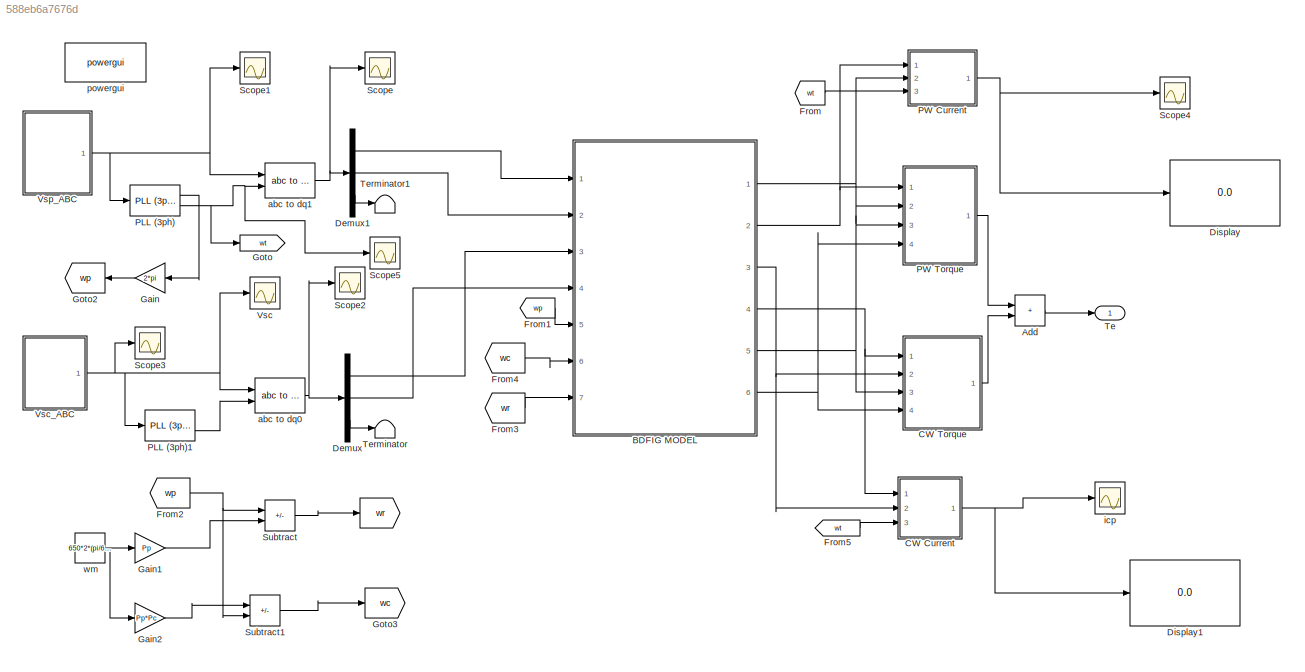
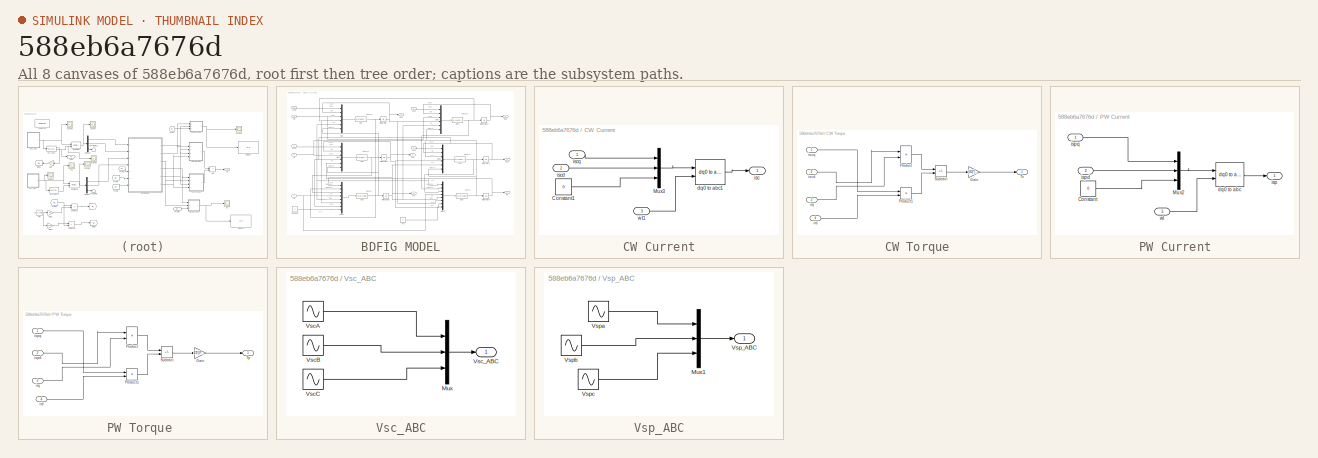
[diagram: thumbnail index - all 8 canvases of the model, root first then tree order]
MODEL slx_588eb6a7676d
KIND model
CONFIG AbsTol = auto
CONFIG EnableMultiTasking = off
CONFIG FixedStep = auto
CONFIG MaxStep = 0.0001
CONFIG MinStep = auto
CONFIG RelTol = 1e-3
CONFIG SampleTimeConstraint = Unconstrained
CONFIG Solver = VariableStepAuto
CONFIG SolverName = VariableStepAuto
CONFIG StartTime = 0.0
CONFIG StopTime = 3
WORKSPACE source: MATLAB code (in-file)
WORKSPACE Pp = 2
WORKSPACE Pc = 4
WORKSPACE Rr = 0.1023
WORKSPACE Rsp = 0.0770  (= 0.077)
WORKSPACE Rsc = 0.1023
WORKSPACE Lr = 0.14302
WORKSPACE Lsp = 0.08618
WORKSPACE Lsc = 0.025913
WORKSPACE Lmp = 0.0758
WORKSPACE Lmc = 0.0733
WORKSPACE Ts = 2e-5  (= 2e-05)
BLOCK [Goto]  
  GotoTag = wr
BLOCK [Sum] Add
  IconShape = rectangular
  Ports = [2, 1]
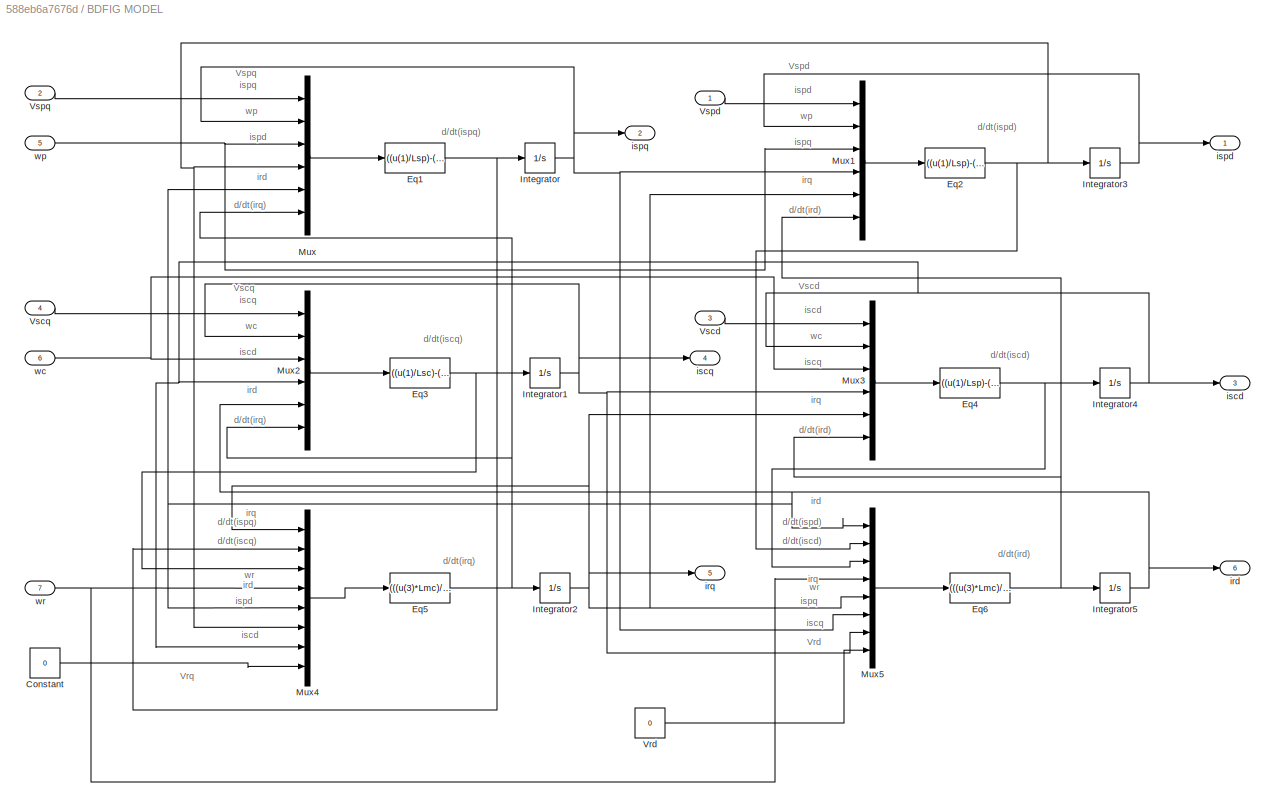
BLOCK [SubSystem] BDFIG MODEL
  Ports = [7, 6]
  RequestExecContextInheritance = off
BLOCK [Constant] BDFIG MODEL/Constant
  Value = 0
BLOCK [Fcn] BDFIG MODEL/Eq1
  Expr = ((u(1)/Lsp)-((Rsp*u(2))/Lsp)-(u(3)*u(4))-((u(3)*Lmp*u(5))/Lsp)-((u(6)*Lmp)/Lsp))
BLOCK [Fcn] BDFIG MODEL/Eq2
  Expr = ((u(1)/Lsp)-((Rsp*u(2))/Lsp)-(u(3)*u(4))+((u(3)*Lmp*u(5))/Lsp)-((u(6)*Lmp)/Lsp))
BLOCK [Fcn] BDFIG MODEL/Eq3
  Expr = ((u(1)/Lsc)-((Rsc*u(2))/Lsc)-(u(3)*u(4))+((u(3)*Lmc*u(5))/Lsc)-((u(6)*Lmc)/Lsc))
BLOCK [Fcn] BDFIG MODEL/Eq4
  Expr = ((u(1)/Lsp)-((Rsc*u(2))/Lsp)-(u(3)*u(4))+((u(3)*Lmp*u(5))/Lsp)-((u(6)*Lmp)/Lsp))
BLOCK [Fcn] BDFIG MODEL/Eq5
  Expr = (((u(3)*Lmc)/Lr)+(u(4)*u(5))-((u(4)*Lmp*u(6))/Lr)+((u(4)*Lmc*u(7))/Lr)-((Rr*u(1))/Lr)-((u(2)*Lmp)/Lr))
BLOCK [Fcn] BDFIG MODEL/Eq6
  Expr = (((u(3)*Lmc)/Lr)-(u(4)*u(5))-((u(4)*Lmp*u(6))/Lr)+((u(4)*Lmc*u(7))/Lr)-((Rr*u(1))/Lr)-((u(2)*Lmp)/Lr));
BLOCK [Integrator] BDFIG MODEL/Integrator
  Ports = [1, 1]
BLOCK [Integrator] BDFIG MODEL/Integrator1
  Ports = [1, 1]
BLOCK [Integrator] BDFIG MODEL/Integrator2
  Ports = [1, 1]
BLOCK [Integrator] BDFIG MODEL/Integrator3
  Ports = [1, 1]
BLOCK [Integrator] BDFIG MODEL/Integrator4
  Ports = [1, 1]
BLOCK [Integrator] BDFIG MODEL/Integrator5
  Ports = [1, 1]
BLOCK [Mux] BDFIG MODEL/Mux
  DisplayOption = bar
  Inputs = 6
  Ports = [6, 1]
BLOCK [Mux] BDFIG MODEL/Mux1
  DisplayOption = bar
  Inputs = 6
  Ports = [6, 1]
BLOCK [Mux] BDFIG MODEL/Mux2
  DisplayOption = bar
  Inputs = 6
  Ports = [6, 1]
BLOCK [Mux] BDFIG MODEL/Mux3
  DisplayOption = bar
  Inputs = 6
  Ports = [6, 1]
BLOCK [Mux] BDFIG MODEL/Mux4
  DisplayOption = bar
  Inputs = 8
  Ports = [8, 1]
BLOCK [Mux] BDFIG MODEL/Mux5
  DisplayOption = bar
  Inputs = 8
  Ports = [8, 1]
BLOCK [Constant] BDFIG MODEL/Vrd
  Value = 0
BLOCK [Inport] BDFIG MODEL/Vscd
  Port = 3
BLOCK [Inport] BDFIG MODEL/Vscq
  Port = 4
BLOCK [Inport] BDFIG MODEL/Vspd
BLOCK [Inport] BDFIG MODEL/Vspq
  Port = 2
BLOCK [Outport] BDFIG MODEL/ird
  Port = 6
BLOCK [Outport] BDFIG MODEL/irq
  Port = 5
BLOCK [Outport] BDFIG MODEL/iscd
  Port = 3
BLOCK [Outport] BDFIG MODEL/iscq
  Port = 4
BLOCK [Outport] BDFIG MODEL/ispd
BLOCK [Outport] BDFIG MODEL/ispq
  Port = 2
BLOCK [Inport] BDFIG MODEL/wc
  Port = 6
BLOCK [Inport] BDFIG MODEL/wp
  Port = 5
BLOCK [Inport] BDFIG MODEL/wr
  Port = 7
BLOCK [SubSystem] CW Current
  Ports = [3, 1]
  RequestExecContextInheritance = off
BLOCK [Constant] CW Current/Constant1
  Value = 0
BLOCK [Mux] CW Current/Mux3
  DisplayOption = bar
  Inputs = 3
  Ports = [3, 1]
BLOCK [Reference] CW Current/dq0 to abc1  REF=powerlib_meascontrol/Transformations/dq0 to abc
  Ports = [2, 1]
  SourceBlock = powerlib_meascontrol/Transformations/dq0 to abc
  SourceProductBaseCode = PS
  SourceType = dq0 to abc Transformation
BLOCK [Outport] CW Current/isc
BLOCK [Inport] CW Current/iscd
  Port = 2
BLOCK [Inport] CW Current/iscq
BLOCK [Inport] CW Current/wt1
  Port = 3
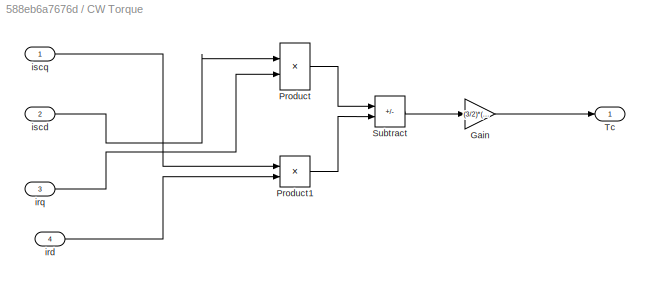
BLOCK [SubSystem] CW Torque
  Ports = [4, 1]
  RequestExecContextInheritance = off
BLOCK [Gain] CW Torque/Gain
  Gain = (3/2)*(Pc/2)*Lmc
BLOCK [Product] CW Torque/Product
  Ports = [2, 1]
BLOCK [Product] CW Torque/Product1
  Ports = [2, 1]
BLOCK [Sum] CW Torque/Subtract
  IconShape = rectangular
  Inputs = +-
  Ports = [2, 1]
BLOCK [Outport] CW Torque/Tc
BLOCK [Inport] CW Torque/ird
  Port = 4
BLOCK [Inport] CW Torque/irq
  Port = 3
BLOCK [Inport] CW Torque/iscd
  Port = 2
BLOCK [Inport] CW Torque/iscq
BLOCK [Demux] Demux
  Outputs = 3
  Ports = [1, 3]
BLOCK [Demux] Demux1
  Outputs = 3
  Ports = [1, 3]
BLOCK [Display] Display
  Decimation = 1
  Ports = [1]
BLOCK [Display] Display1
  Decimation = 1
  Ports = [1]
BLOCK [From] From
  GotoTag = wt
BLOCK [From] From1
  GotoTag = wp
  NameLocation = top
BLOCK [From] From2
  GotoTag = wp
  NameLocation = top
BLOCK [From] From3
  GotoTag = wr
BLOCK [From] From4
  GotoTag = wc
BLOCK [From] From5
  GotoTag = wt
BLOCK [Gain] Gain
  Gain = 2*pi
  NameLocation = top
BLOCK [Gain] Gain1
  Gain = Pp
BLOCK [Gain] Gain2
  Gain = Pp*Pc
BLOCK [Goto] Goto
  GotoTag = wt
BLOCK [Goto] Goto2
  GotoTag = wp
  NameLocation = top
BLOCK [Goto] Goto3
  GotoTag = wc
BLOCK [Reference] PLL (3ph)  REF=powerlib_meascontrol/PLL/PLL
(3ph)
  Ports = [1, 2]
  SourceBlock = powerlib_meascontrol/PLL/PLL\n(3ph)
  SourceProductBaseCode = PS
  SourceType = PLL (3ph)
BLOCK [Reference] PLL (3ph)1  REF=powerlib_meascontrol/PLL/PLL
(3ph)
  Ports = [1, 2]
  SourceBlock = powerlib_meascontrol/PLL/PLL\n(3ph)
  SourceProductBaseCode = PS
  SourceType = PLL (3ph)
BLOCK [SubSystem] PW Current
  Ports = [3, 1]
  RequestExecContextInheritance = off
BLOCK [Constant] PW Current/Constant
  Value = 0
BLOCK [Mux] PW Current/Mux2
  DisplayOption = bar
  Inputs = 3
  Ports = [3, 1]
BLOCK [Reference] PW Current/dq0 to abc  REF=powerlib_meascontrol/Transformations/dq0 to abc
  Ports = [2, 1]
  SourceBlock = powerlib_meascontrol/Transformations/dq0 to abc
  SourceProductBaseCode = PS
  SourceType = dq0 to abc Transformation
BLOCK [Outport] PW Current/isp
BLOCK [Inport] PW Current/ispd
  Port = 2
BLOCK [Inport] PW Current/ispq
BLOCK [Inport] PW Current/wt
  Port = 3
BLOCK [SubSystem] PW Torque 
  Ports = [4, 1]
  RequestExecContextInheritance = off
BLOCK [Gain] PW Torque /Gain
  Gain = 3/2*((Pp)/2)*Lmp
BLOCK [Product] PW Torque /Product
  Ports = [2, 1]
BLOCK [Product] PW Torque /Product1
  Ports = [2, 1]
BLOCK [Sum] PW Torque /Subtract
  IconShape = rectangular
  Inputs = +-
  Ports = [2, 1]
BLOCK [Outport] PW Torque /Tp
BLOCK [Inport] PW Torque /ird
  Port = 4
BLOCK [Inport] PW Torque /irq
  Port = 3
BLOCK [Inport] PW Torque /ispd
  Port = 2
BLOCK [Inport] PW Torque /ispq
BLOCK [Scope] Scope
  Floating = off
  NumInputPorts = 1
  Ports = [1]
  ScopeSpecificationString = Simulink.scopes.TimeScopeBlockCfg('CurrentConfiguration', extmgr.ConfigurationSet(extmgr.Configuration('Core','General UI',true),extmgr.Configuration('Core','Source UI',true),extmgr.Configuration('Sources','WiredSimulink',true,'DataLoggingVariableName','ScopeData1'),extmgr.Configuration('Visuals','Time Domain',true,'SerializedDisplays',{struct('MinYLimReal','-612.20245','MaxYLimReal','611.04644','...<+1490ch>
BLOCK [Scope] Scope1
  Floating = off
  NumInputPorts = 1
  Ports = [1]
  ScopeSpecificationString = Simulink.scopes.TimeScopeBlockCfg('CurrentConfiguration', extmgr.ConfigurationSet(extmgr.Configuration('Core','General UI',true),extmgr.Configuration('Core','Source UI',true),extmgr.Configuration('Sources','WiredSimulink',true,'DataLoggingVariableName','ScopeData2'),extmgr.Configuration('Visuals','Time Domain',true,'SerializedDisplays',{struct('MinYLimReal','-408.24826','MaxYLimReal','408.24829','...<+1504ch>
BLOCK [Scope] Scope2
  Floating = off
  NumInputPorts = 1
  Ports = [1]
  ScopeSpecificationString = Simulink.scopes.TimeScopeBlockCfg('CurrentConfiguration', extmgr.ConfigurationSet(extmgr.Configuration('Core','General UI',true),extmgr.Configuration('Core','Source UI',true),extmgr.Configuration('Sources','WiredSimulink',true,'DataLoggingVariableName','ScopeData3'),extmgr.Configuration('Visuals','Time Domain',true,'SerializedDisplays',{struct('MinYLimReal','-611.847','MaxYLimReal','611.67769','YL...<+1506ch>
BLOCK [Scope] Scope3
  Floating = off
  NumInputPorts = 1
  Ports = [1]
  ScopeSpecificationString = Simulink.scopes.TimeScopeBlockCfg('CurrentConfiguration', extmgr.ConfigurationSet(extmgr.Configuration('Core','General UI',true),extmgr.Configuration('Core','Source UI',true),extmgr.Configuration('Sources','WiredSimulink',true,'DataLoggingVariableName','ScopeData1'),extmgr.Configuration('Visuals','Time Domain',true,'SerializedDisplays',{struct('MinYLimReal','-181.62997','MaxYLimReal','181.14567','...<+1504ch>
BLOCK [Scope] Scope4
  Floating = off
  NumInputPorts = 1
  Ports = [1]
  ScopeSpecificationString = Simulink.scopes.TimeScopeBlockCfg('CurrentConfiguration', extmgr.ConfigurationSet(extmgr.Configuration('Core','General UI',true),extmgr.Configuration('Core','Source UI',true),extmgr.Configuration('Sources','WiredSimulink',true,'DataLoggingVariableName','ScopeData2'),extmgr.Configuration('Visuals','Time Domain',true,'SerializedDisplays',{struct('MinYLimReal','-37795254485978419778766413723945479994...<+3886ch>
BLOCK [Scope] Scope5
  Floating = off
  NumInputPorts = 1
  Ports = [1]
  ScopeSpecificationString = Simulink.scopes.TimeScopeBlockCfg('CurrentConfiguration', extmgr.ConfigurationSet(extmgr.Configuration('Core','General UI',true),extmgr.Configuration('Core','Source UI',true),extmgr.Configuration('Sources','WiredSimulink',true,'DataLoggingVariableName','ScopeData1'),extmgr.Configuration('Visuals','Time Domain',true,'SerializedDisplays',{struct('MinYLimReal','-611.847','MaxYLimReal','611.67769','YL...<+1475ch>
BLOCK [Sum] Subtract
  IconShape = rectangular
  Inputs = +-
  Ports = [2, 1]
BLOCK [Sum] Subtract1
  IconShape = rectangular
  Inputs = +-
  Ports = [2, 1]
BLOCK [Outport] Te
BLOCK [Terminator] Terminator
BLOCK [Terminator] Terminator1
BLOCK [Scope] Vsc
  Floating = off
  NumInputPorts = 1
  Ports = [1]
  ScopeSpecificationString = Simulink.scopes.TimeScopeBlockCfg('CurrentConfiguration', extmgr.ConfigurationSet(extmgr.Configuration('Core','General UI',true),extmgr.Configuration('Core','Source UI',true),extmgr.Configuration('Sources','WiredSimulink',true,'DataLoggingVariableName','ScopeData1'),extmgr.Configuration('Visuals','Time Domain',true,'SerializedDisplays',{struct('MinYLimReal','-181.62997','MaxYLimReal','181.14567','...<+1503ch>
BLOCK [SubSystem] Vsc_ABC
  Ports = [0, 1]
  RequestExecContextInheritance = off
BLOCK [Mux] Vsc_ABC/Mux
  DisplayOption = bar
  Inputs = 3
  Ports = [3, 1]
BLOCK [Sin] Vsc_ABC/VscA
  Amplitude = (178.02/sqrt(3))*sqrt(2)
  Frequency = 2*pi*50
  Ports = [0, 1]
  SampleTime = Ts
BLOCK [Sin] Vsc_ABC/VscB
  Amplitude = (178.02/sqrt(3))*sqrt(2)
  Frequency = 2*pi*50
  Phase = -(2*pi)/3
  Ports = [0, 1]
  SampleTime = Ts
BLOCK [Sin] Vsc_ABC/VscC
  Amplitude = (178.02/sqrt(3))*sqrt(2)
  Frequency = 2*pi*50
  Phase = (2*pi)/3
  Ports = [0, 1]
  SampleTime = Ts
BLOCK [Outport] Vsc_ABC/Vsc_ABC
BLOCK [SubSystem] Vsp_ABC
  Ports = [0, 1]
  RequestExecContextInheritance = off
BLOCK [Mux] Vsp_ABC/Mux1
  DisplayOption = bar
  Inputs = 3
  Ports = [3, 1]
BLOCK [Outport] Vsp_ABC/Vsp_ABC
BLOCK [Sin] Vsp_ABC/Vspa
  Amplitude = 0
  Frequency = 2*pi*50
  Ports = [0, 1]
  SampleTime = Ts
BLOCK [Sin] Vsp_ABC/Vspb
  Amplitude = 0
  Frequency = 2*pi*50
  Phase = -((2*pi)/3)
  Ports = [0, 1]
  SampleTime = Ts
BLOCK [Sin] Vsp_ABC/Vspc
  Amplitude = 0
  Frequency = 2*pi*50
  Phase = (2*pi)/3
  Ports = [0, 1]
  SampleTime = Ts
BLOCK [Reference] abc to dq0  REF=powerlib_meascontrol/Transformations/abc to dq0
  Ports = [2, 1]
  SourceBlock = powerlib_meascontrol/Transformations/abc to dq0
  SourceProductBaseCode = PS
  SourceType = abc to dq0 Transformation
BLOCK [Reference] abc to dq1  REF=powerlib_meascontrol/Transformations/abc to dq0
  Ports = [2, 1]
  SourceBlock = powerlib_meascontrol/Transformations/abc to dq0
  SourceProductBaseCode = PS
  SourceType = abc to dq0 Transformation
BLOCK [Scope] icp
  Floating = off
  NumInputPorts = 1
  Ports = [1]
  ScopeSpecificationString = Simulink.scopes.TimeScopeBlockCfg('CurrentConfiguration', extmgr.ConfigurationSet(extmgr.Configuration('Core','General UI',true),extmgr.Configuration('Core','Source UI',true),extmgr.Configuration('Sources','WiredSimulink',true,'DataLoggingVariableName','ScopeData3'),extmgr.Configuration('Visuals','Time Domain',true,'SerializedDisplays',{struct('MinYLimReal','-31671737994509007471852537772327478611...<+2858ch>
BLOCK [Reference] powergui  REF=powerlib/powergui
  Ports = []
  Priority = 1
  SourceBlock = powerlib/powergui
  SourceProductBaseCode = PS
  SourceType = PSB option menu block
BLOCK [Constant] wm
  Value = 650*2*(pi/60)
ANNOTATION BDFIG MODEL: d/dt(ird)
ANNOTATION BDFIG MODEL: d/dt(irq)
ANNOTATION BDFIG MODEL: d/dt(iscd)
ANNOTATION BDFIG MODEL: d/dt(iscq)
ANNOTATION BDFIG MODEL: d/dt(ispd)
ANNOTATION BDFIG MODEL: d/dt(ispq )
ANNOTATION BDFIG MODEL: Vrd
ANNOTATION BDFIG MODEL: Vrq
ANNOTATION BDFIG MODEL: Vscd
ANNOTATION BDFIG MODEL: Vscq
ANNOTATION BDFIG MODEL: Vspd
ANNOTATION BDFIG MODEL: Vspq
ANNOTATION BDFIG MODEL: d/dt(ispq)
ANNOTATION BDFIG MODEL: ird
ANNOTATION BDFIG MODEL: irq
ANNOTATION BDFIG MODEL: iscd
ANNOTATION BDFIG MODEL: iscq
ANNOTATION BDFIG MODEL: ispd
ANNOTATION BDFIG MODEL: ispq
ANNOTATION BDFIG MODEL: wc
ANNOTATION BDFIG MODEL: wp
ANNOTATION BDFIG MODEL: wr
LINE Add:1 -> Te:1
LINE BDFIG MODEL/Constant:1 -> BDFIG MODEL/Mux4:8
NET BDFIG MODEL/Eq1:1 -> BDFIG MODEL/Integrator:1, BDFIG MODEL/Mux4:2
NET BDFIG MODEL/Eq2:1 -> BDFIG MODEL/Integrator3:1, BDFIG MODEL/Mux4:6, BDFIG MODEL/Mux5:2, BDFIG MODEL/Mux:4
NET BDFIG MODEL/Eq3:1 -> BDFIG MODEL/Integrator1:1, BDFIG MODEL/Mux4:3
NET BDFIG MODEL/Eq4:1 -> BDFIG MODEL/Integrator4:1, BDFIG MODEL/Mux5:3
NET BDFIG MODEL/Eq5:1 -> BDFIG MODEL/Integrator2:1, BDFIG MODEL/Mux2:6, BDFIG MODEL/Mux:6
NET BDFIG MODEL/Eq6:1 -> BDFIG MODEL/Integrator5:1, BDFIG MODEL/Mux1:6, BDFIG MODEL/Mux3:6
NET BDFIG MODEL/Integrator1:1 -> BDFIG MODEL/Mux2:2, BDFIG MODEL/Mux3:4, BDFIG MODEL/Mux5:7, BDFIG MODEL/iscq:1
NET BDFIG MODEL/Integrator2:1 -> BDFIG MODEL/Mux1:5, BDFIG MODEL/Mux3:5, BDFIG MODEL/Mux4:1, BDFIG MODEL/Mux5:5, BDFIG MODEL/irq:1
NET BDFIG MODEL/Integrator3:1 -> BDFIG MODEL/Mux1:2, BDFIG MODEL/ispd:1
NET BDFIG MODEL/Integrator4:1 -> BDFIG MODEL/Mux2:4, BDFIG MODEL/Mux3:2, BDFIG MODEL/Mux4:7, BDFIG MODEL/iscd:1
NET BDFIG MODEL/Integrator5:1 -> BDFIG MODEL/Mux2:5, BDFIG MODEL/Mux4:5, BDFIG MODEL/Mux5:1, BDFIG MODEL/Mux:5, BDFIG MODEL/ird:1
NET BDFIG MODEL/Integrator:1 -> BDFIG MODEL/Mux1:4, BDFIG MODEL/Mux5:6, BDFIG MODEL/Mux:2, BDFIG MODEL/ispq:1
LINE BDFIG MODEL/Mux1:1 -> BDFIG MODEL/Eq2:1
LINE BDFIG MODEL/Mux2:1 -> BDFIG MODEL/Eq3:1
LINE BDFIG MODEL/Mux3:1 -> BDFIG MODEL/Eq4:1
LINE BDFIG MODEL/Mux4:1 -> BDFIG MODEL/Eq5:1
LINE BDFIG MODEL/Mux5:1 -> BDFIG MODEL/Eq6:1
LINE BDFIG MODEL/Mux:1 -> BDFIG MODEL/Eq1:1
LINE BDFIG MODEL/Vrd:1 -> BDFIG MODEL/Mux5:8
LINE BDFIG MODEL/Vscd:1 -> BDFIG MODEL/Mux3:1
LINE BDFIG MODEL/Vscq:1 -> BDFIG MODEL/Mux2:1
LINE BDFIG MODEL/Vspd:1 -> BDFIG MODEL/Mux1:1
LINE BDFIG MODEL/Vspq:1 -> BDFIG MODEL/Mux:1
NET BDFIG MODEL/wc:1 -> BDFIG MODEL/Mux2:3, BDFIG MODEL/Mux3:3
NET BDFIG MODEL/wp:1 -> BDFIG MODEL/Mux1:3, BDFIG MODEL/Mux:3
NET BDFIG MODEL/wr:1 -> BDFIG MODEL/Mux4:4, BDFIG MODEL/Mux5:4
NET BDFIG MODEL:1 -> PW Current:2, PW Torque :2
NET BDFIG MODEL:2 -> PW Current:1, PW Torque :1
NET BDFIG MODEL:3 -> CW Current:2, CW Torque:2
NET BDFIG MODEL:4 -> CW Current:1, CW Torque:1
NET BDFIG MODEL:5 -> CW Torque:3, PW Torque :3
NET BDFIG MODEL:6 -> CW Torque:4, PW Torque :4
LINE CW Current/Constant1:1 -> CW Current/Mux3:3
LINE CW Current/Mux3:1 -> CW Current/dq0 to abc1:1
LINE CW Current/dq0 to abc1:1 -> CW Current/isc:1
LINE CW Current/iscd:1 -> CW Current/Mux3:2
LINE CW Current/iscq:1 -> CW Current/Mux3:1
LINE CW Current/wt1:1 -> CW Current/dq0 to abc1:2
NET CW Current:1 -> Display1:1, icp:1
LINE CW Torque/Gain:1 -> CW Torque/Tc:1
LINE CW Torque/Product1:1 -> CW Torque/Subtract:2
LINE CW Torque/Product:1 -> CW Torque/Subtract:1
LINE CW Torque/Subtract:1 -> CW Torque/Gain:1
LINE CW Torque/ird:1 -> CW Torque/Product1:2
LINE CW Torque/irq:1 -> CW Torque/Product:2
LINE CW Torque/iscd:1 -> CW Torque/Product:1
LINE CW Torque/iscq:1 -> CW Torque/Product1:1
LINE CW Torque:1 -> Add:2
LINE Demux1:1 -> BDFIG MODEL:1
LINE Demux1:2 -> BDFIG MODEL:2
LINE Demux1:3 -> Terminator1:1
LINE Demux:1 -> BDFIG MODEL:3
LINE Demux:2 -> BDFIG MODEL:4
LINE Demux:3 -> Terminator:1
LINE From1:1 -> BDFIG MODEL:5
NET From2:1 -> Subtract1:2, Subtract:1
LINE From3:1 -> BDFIG MODEL:7
LINE From4:1 -> BDFIG MODEL:6
LINE From5:1 -> CW Current:3
LINE From:1 -> PW Current:3
LINE Gain1:1 -> Subtract:2
LINE Gain2:1 -> Subtract1:1
LINE Gain:1 -> Goto2:1
LINE PLL (3ph)1:2 -> abc to dq0:2
LINE PLL (3ph):1 -> Gain:1
NET PLL (3ph):2 -> Goto:1, Scope5:1, abc to dq1:2
LINE PW Current/Constant:1 -> PW Current/Mux2:3
LINE PW Current/Mux2:1 -> PW Current/dq0 to abc:1
LINE PW Current/dq0 to abc:1 -> PW Current/isp:1
LINE PW Current/ispd:1 -> PW Current/Mux2:2
LINE PW Current/ispq:1 -> PW Current/Mux2:1
LINE PW Current/wt:1 -> PW Current/dq0 to abc:2
NET PW Current:1 -> Display:1, Scope4:1
LINE PW Torque /Gain:1 -> PW Torque /Tp:1
LINE PW Torque /Product1:1 -> PW Torque /Subtract:2
LINE PW Torque /Product:1 -> PW Torque /Subtract:1
LINE PW Torque /Subtract:1 -> PW Torque /Gain:1
LINE PW Torque /ird:1 -> PW Torque /Product1:2
LINE PW Torque /irq:1 -> PW Torque /Product:2
LINE PW Torque /ispd:1 -> PW Torque /Product:1
LINE PW Torque /ispq:1 -> PW Torque /Product1:1
LINE PW Torque :1 -> Add:1
LINE Subtract1:1 -> Goto3:1
LINE Subtract:1 ->  :1
LINE Vsc_ABC/Mux:1 -> Vsc_ABC/Vsc_ABC:1
LINE Vsc_ABC/VscA:1 -> Vsc_ABC/Mux:1
LINE Vsc_ABC/VscB:1 -> Vsc_ABC/Mux:2
LINE Vsc_ABC/VscC:1 -> Vsc_ABC/Mux:3
NET Vsc_ABC:1 -> PLL (3ph)1:1, Scope3:1, Vsc:1, abc to dq0:1
LINE Vsp_ABC/Mux1:1 -> Vsp_ABC/Vsp_ABC:1
LINE Vsp_ABC/Vspa:1 -> Vsp_ABC/Mux1:1
LINE Vsp_ABC/Vspb:1 -> Vsp_ABC/Mux1:2
LINE Vsp_ABC/Vspc:1 -> Vsp_ABC/Mux1:3
NET Vsp_ABC:1 -> PLL (3ph):1, Scope1:1, abc to dq1:1
NET abc to dq0:1 -> Demux:1, Scope2:1
NET abc to dq1:1 -> Demux1:1, Scope:1
NET wm:1 -> Gain1:1, Gain2:1
note: NET lines group one-source signal fan-out (src -> all destinations, sorted); 1:1 wires keep LINE
